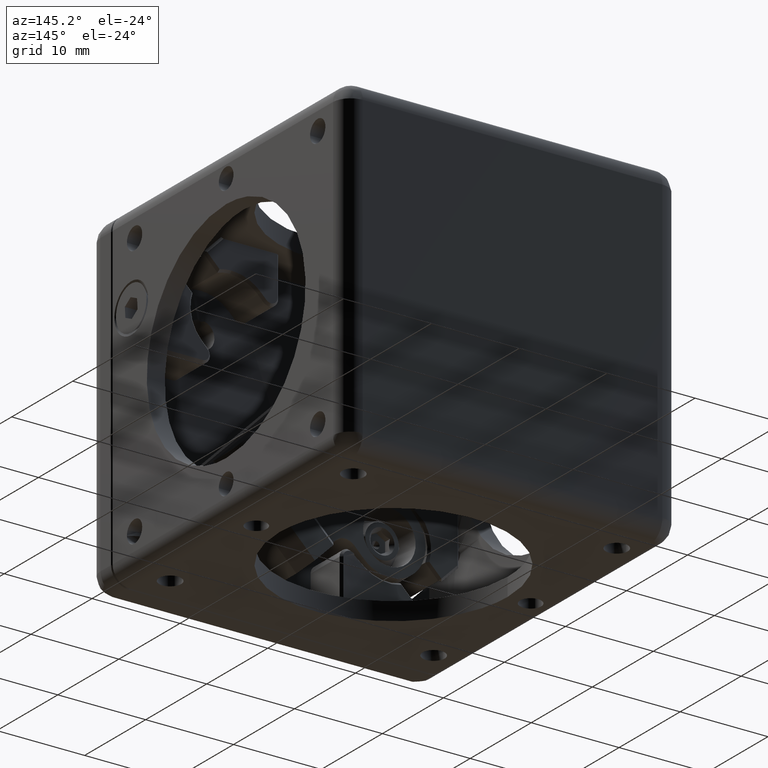
[diagram: clean part render]
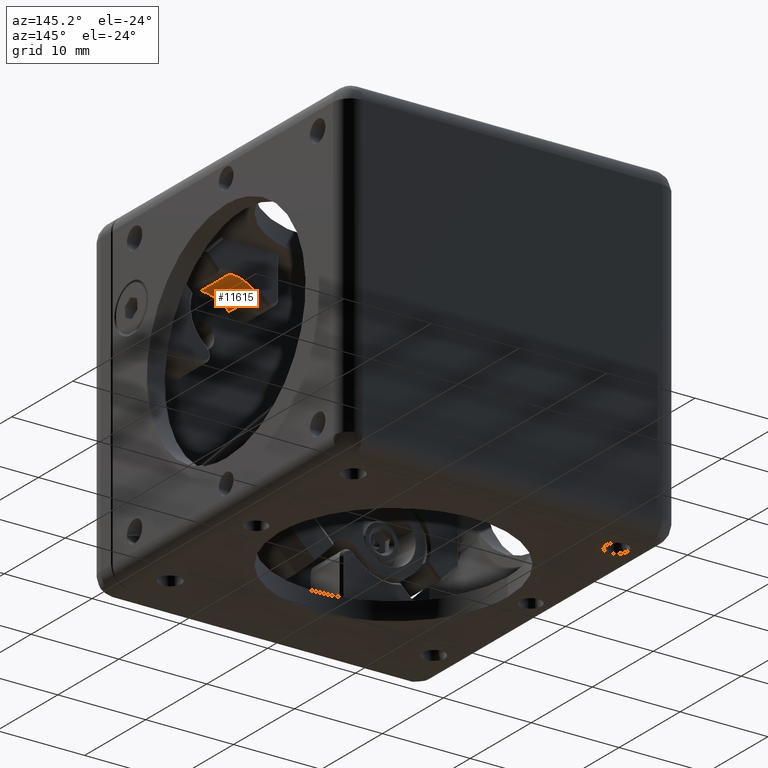
[diagram: same view with one face highlighted and labeled with its STEP entity id]
A machine part, auxiliary view. The second image highlights one B-rep face of the part: STEP entity #11615.
In plain terms, the highlighted face is a freeform B-spline surface patch.
Its self-contained STEP definition (entity closure, byte-faithful):
#87 =( BOUNDED_SURFACE ( )  B_SPLINE_SURFACE ( 1, 3, ( 
 ( #15407, #858, #10805, #14134 ),
 ( #14451, #13109, #9439, #3299 ) ),
 .UNSPECIFIED., .F., .F., .F. ) 
 B_SPLINE_SURFACE_WITH_KNOTS ( ( 2, 2 ),
 ( 4, 4 ),
 ( 0.000000000000000000, 1.000000000000000000 ),
 ( 0.000000000000000000, 1.000000000000000000 ),
 .UNSPECIFIED. ) 
 GEOMETRIC_REPRESENTATION_ITEM ( )  RATIONAL_B_SPLINE_SURFACE ( (
 ( 1.000000000000000000, 0.9492530216741910110, 0.9492530216741910110, 1.000000000000000000),
 ( 1.000000000000000000, 0.9492530216741910110, 0.9492530216741910110, 1.000000000000000000) ) ) 
 REPRESENTATION_ITEM ( '' )  SURFACE ( )  );
#130 = VERTEX_POINT ( 'NONE', #15530 ) ;
#858 = CARTESIAN_POINT ( 'NONE',  ( 6.653468195780753547, 1.525000000000008793, 13.01742922645959588 ) ) ;
#1718 = CARTESIAN_POINT ( 'NONE',  ( 8.980256121069210451, 2.000000000000000000, 13.48025612106910032 ) ) ;
#2153 = EDGE_CURVE ( 'NONE', #130, #12705, #9483, .T. ) ;
#2261 = CARTESIAN_POINT ( 'NONE',  ( 6.712279629764562827, 2.000000000000000000, 12.91158729426219764 ) ) ;
#2572 = CARTESIAN_POINT ( 'NONE',  ( 5.798275605729749316, 2.000000000000000000, 12.16223663640859876 ) ) ;
#2868 = ORIENTED_EDGE ( 'NONE', *, *, #12826, .F. ) ;
#3299 = CARTESIAN_POINT ( 'NONE',  ( 8.980256121069210451, 7.224999999999999645, 13.48025612106910032 ) ) ;
#3355 = ORIENTED_EDGE ( 'NONE', *, *, #14586, .F. ) ;
#3909 = CARTESIAN_POINT ( 'NONE',  ( 6.653468195780758876, 6.749999999999992895, 13.01742922645960476 ) ) ;
#4157 = CARTESIAN_POINT ( 'NONE',  ( 8.980256121069210451, 2.000000000000000000, 13.48025612106910032 ) ) ;
#4503 = FACE_OUTER_BOUND ( 'NONE', #12215, .T. ) ;
#5504 = VERTEX_POINT ( 'NONE', #1718 ) ;
#6356 = CARTESIAN_POINT ( 'NONE',  ( 5.798275605729749316, 2.000000000000000000, 12.16223663640859876 ) ) ;
#6843 = EDGE_CURVE ( 'NONE', #12705, #5504, #13282, .T. ) ;
#7269 =( BOUNDED_CURVE ( )  B_SPLINE_CURVE ( 3, ( #14893, #7491, #3909, #7416 ),
 .UNSPECIFIED., .F., .F. ) 
 B_SPLINE_CURVE_WITH_KNOTS ( ( 4, 4 ),
 ( 0.000000000000000000, 1.000000000000000000 ),
 .UNSPECIFIED. ) 
 CURVE ( )  GEOMETRIC_REPRESENTATION_ITEM ( )  RATIONAL_B_SPLINE_CURVE ( ( 1.000000000000000000, 0.9492530216741920102, 0.9492530216741920102, 1.000000000000000000 ) ) 
 REPRESENTATION_ITEM ( '' )  );
#7416 = CARTESIAN_POINT ( 'NONE',  ( 5.798275605729749316, 6.750000000000000000, 12.16223663640859876 ) ) ;
#7491 = CARTESIAN_POINT ( 'NONE',  ( 7.770831161778105844, 6.749999999999992895, 13.48025612106909321 ) ) ;
#8457 = CARTESIAN_POINT ( 'NONE',  ( 6.216115440749814702, 2.000000000000000000, 12.58007647142864371 ) ) ;
#8645 = CARTESIAN_POINT ( 'NONE',  ( 5.798275605729749316, 6.750000000000000000, 12.16223663640859876 ) ) ;
#9439 = CARTESIAN_POINT ( 'NONE',  ( 7.770831161778103180, 7.224999999999988987, 13.48025612106908788 ) ) ;
#9483 = B_SPLINE_CURVE_WITH_KNOTS ( 'NONE', 1,
 ( #8645, #13512 ),
 .UNSPECIFIED., .F., .F.,
 ( 2, 2 ),
 ( 0.000000000000000000, 1.000000000000000000 ),
 .UNSPECIFIED. ) ;
#10054 = CARTESIAN_POINT ( 'NONE',  ( 8.980256121069210451, 6.750000000000000000, 13.48025612106910032 ) ) ;
#10139 = VERTEX_POINT ( 'NONE', #10565 ) ;
#10565 = CARTESIAN_POINT ( 'NONE',  ( 8.980256121069210451, 6.750000000000000000, 13.48025612106910032 ) ) ;
#10805 = CARTESIAN_POINT ( 'NONE',  ( 7.770831161778103180, 1.525000000000008793, 13.48025612106908788 ) ) ;
#11506 = ORIENTED_EDGE ( 'NONE', *, *, #6843, .F. ) ;
#11615 = ADVANCED_FACE ( 'NONE', ( #4503 ), #87, .T. ) ;
#12215 = EDGE_LOOP ( 'NONE', ( #11506, #12645, #2868, #3355 ) ) ;
#12248 = B_SPLINE_CURVE_WITH_KNOTS ( 'NONE', 1,
 ( #4157, #10054 ),
 .UNSPECIFIED., .F., .F.,
 ( 2, 2 ),
 ( 0.000000000000000000, 1.000000000000000000 ),
 .UNSPECIFIED. ) ;
#12645 = ORIENTED_EDGE ( 'NONE', *, *, #2153, .F. ) ;
#12705 = VERTEX_POINT ( 'NONE', #6356 ) ;
#12826 = EDGE_CURVE ( 'NONE', #10139, #130, #7269, .T. ) ;
#13109 = CARTESIAN_POINT ( 'NONE',  ( 6.653468195780753547, 7.224999999999988987, 13.01742922645959588 ) ) ;
#13164 = CARTESIAN_POINT ( 'NONE',  ( 8.980256121069210451, 2.000000000000000000, 13.48025612106910032 ) ) ;
#13282 = B_SPLINE_CURVE_WITH_KNOTS ( 'NONE', 3,
 ( #2572, #8457, #2261, #15630, #14668, #13164 ),
 .UNSPECIFIED., .F., .F.,
 ( 4, 2, 4 ),
 ( 0.000000000000000000, 0.5000000000000000000, 1.000000000000000000 ),
 .UNSPECIFIED. ) ;
#13512 = CARTESIAN_POINT ( 'NONE',  ( 5.798275605729749316, 2.000000000000000000, 12.16223663640859876 ) ) ;
#14134 = CARTESIAN_POINT ( 'NONE',  ( 8.980256121069210451, 1.525000000000000133, 13.48025612106910032 ) ) ;
#14451 = CARTESIAN_POINT ( 'NONE',  ( 5.798275605729749316, 7.224999999999999645, 12.16223663640859876 ) ) ;
#14586 = EDGE_CURVE ( 'NONE', #5504, #10139, #12248, .T. ) ;
#14668 = CARTESIAN_POINT ( 'NONE',  ( 8.389274046102855209, 2.000000000000000000, 13.48025612106912163 ) ) ;
#14893 = CARTESIAN_POINT ( 'NONE',  ( 8.980256121069210451, 6.750000000000000000, 13.48025612106910032 ) ) ;
#15407 = CARTESIAN_POINT ( 'NONE',  ( 5.798275605729749316, 1.525000000000000133, 12.16223663640859876 ) ) ;
#15530 = CARTESIAN_POINT ( 'NONE',  ( 5.798275605729749316, 6.750000000000000000, 12.16223663640859876 ) ) ;
#15630 = CARTESIAN_POINT ( 'NONE',  ( 7.804081721088038215, 2.000000000000000000, 13.36384074047764159 ) ) ;